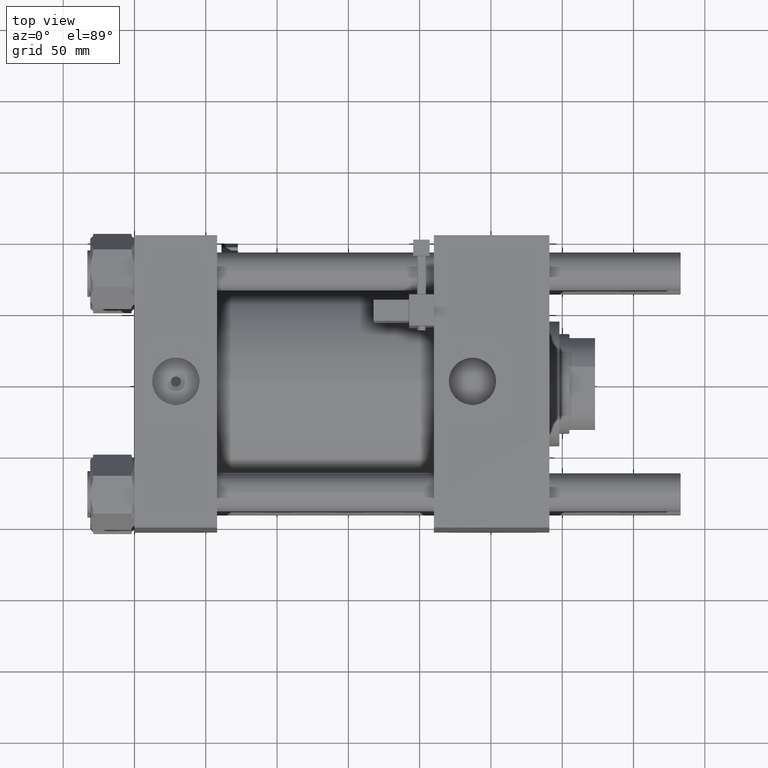
[diagram: clean part render]
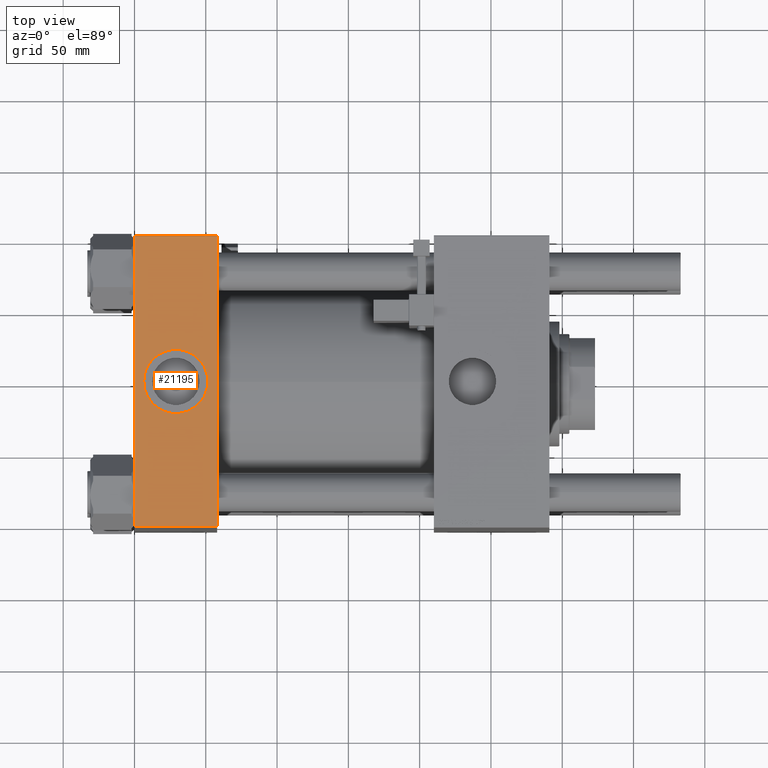
[diagram: same view with one face highlighted and labeled with its STEP entity id]
A machine part, top view. The second image highlights one B-rep face of the part: STEP entity #21195.
In plain terms, the highlighted planar face has unit normal (0, 0, -1).
Its self-contained STEP definition (entity closure, byte-faithful):
#269 = CARTESIAN_POINT ( 'NONE',  ( 58.00000000000000000, -101.9999999999999716, 102.5000000000000000 ) ) ;
#1111 = VECTOR ( 'NONE', #51552, 1000.000000000000000 ) ;
#2645 = DIRECTION ( 'NONE',  ( 1.000000000000000000, 0.000000000000000000, 0.000000000000000000 ) ) ;
#2756 = PLANE ( 'NONE',  #30993 ) ;
#2929 = CARTESIAN_POINT ( 'NONE',  ( 0.000000000000000000, -101.9999999999999147, 102.5000000000000000 ) ) ;
#4558 = CARTESIAN_POINT ( 'NONE',  ( 0.000000000000000000, 102.5000000000000284, 102.5000000000000284 ) ) ;
#4716 = VECTOR ( 'NONE', #13571, 1000.000000000000000 ) ;
#7160 = CARTESIAN_POINT ( 'NONE',  ( 29.00000000000000000, -8.673617379884038628E-15, 102.5000000000000142 ) ) ;
#7269 = FACE_BOUND ( 'NONE', #59557, .T. ) ;
#7463 = CARTESIAN_POINT ( 'NONE',  ( 58.00000000000000000, -101.9999999999999147, 102.5000000000000000 ) ) ;
#7910 = ORIENTED_EDGE ( 'NONE', *, *, #19500, .T. ) ;
#8061 = VERTEX_POINT ( 'NONE', #50924 ) ;
#9252 = EDGE_CURVE ( 'NONE', #8061, #31532, #13380, .T. ) ;
#10041 = ORIENTED_EDGE ( 'NONE', *, *, #9252, .F. ) ;
#10312 = CIRCLE ( 'NONE', #38241, 22.50000000000000355 ) ;
#10409 = ORIENTED_EDGE ( 'NONE', *, *, #47215, .F. ) ;
#11062 = CARTESIAN_POINT ( 'NONE',  ( 51.50000000000000711, -8.673617379884038628E-15, 102.5000000000000142 ) ) ;
#12909 = CARTESIAN_POINT ( 'NONE',  ( 58.00000000000000000, 102.5000000000000284, 102.5000000000000284 ) ) ;
#13273 = LINE ( 'NONE', #44927, #4716 ) ;
#13313 = EDGE_LOOP ( 'NONE', ( #7910, #41637, #21839, #20290 ) ) ;
#13373 = VERTEX_POINT ( 'NONE', #7463 ) ;
#13380 = CIRCLE ( 'NONE', #48058, 22.50000000000000355 ) ;
#13571 = DIRECTION ( 'NONE',  ( -1.000000000000000000, 0.000000000000000000, 0.000000000000000000 ) ) ;
#16478 = DIRECTION ( 'NONE',  ( 0.000000000000000000, 0.000000000000000000, 1.000000000000000000 ) ) ;
#16623 = CARTESIAN_POINT ( 'NONE',  ( 58.00000000000000000, 102.5000000000000284, 102.5000000000000284 ) ) ;
#19500 = EDGE_CURVE ( 'NONE', #42835, #43557, #55471, .T. ) ;
#20290 = ORIENTED_EDGE ( 'NONE', *, *, #51821, .T. ) ;
#21195 = ADVANCED_FACE ( 'NONE', ( #7269, #43171 ), #2756, .F. ) ;
#21352 = LINE ( 'NONE', #12909, #56657 ) ;
#21839 = ORIENTED_EDGE ( 'NONE', *, *, #49608, .F. ) ;
#22901 = CARTESIAN_POINT ( 'NONE',  ( 58.00000000000000000, 102.0000000000000142, 102.5000000000000284 ) ) ;
#25533 = DIRECTION ( 'NONE',  ( 0.000000000000000000, 0.000000000000000000, 1.000000000000000000 ) ) ;
#26163 = DIRECTION ( 'NONE',  ( 0.000000000000000000, -1.000000000000000000, -1.353930517835556973E-16 ) ) ;
#30993 = AXIS2_PLACEMENT_3D ( 'NONE', #16623, #34983, #48272 ) ;
#31532 = VERTEX_POINT ( 'NONE', #11062 ) ;
#34983 = DIRECTION ( 'NONE',  ( 0.000000000000000000, 1.353930517835556973E-16, -1.000000000000000000 ) ) ;
#35343 = VECTOR ( 'NONE', #54530, 1000.000000000000000 ) ;
#35938 = VERTEX_POINT ( 'NONE', #22901 ) ;
#38241 = AXIS2_PLACEMENT_3D ( 'NONE', #7160, #25533, #2645 ) ;
#40262 = CARTESIAN_POINT ( 'NONE',  ( 29.00000000000000000, -8.673617379884038628E-15, 102.5000000000000142 ) ) ;
#41637 = ORIENTED_EDGE ( 'NONE', *, *, #46820, .T. ) ;
#42835 = VERTEX_POINT ( 'NONE', #56739 ) ;
#43171 = FACE_OUTER_BOUND ( 'NONE', #13313, .T. ) ;
#43557 = VERTEX_POINT ( 'NONE', #2929 ) ;
#44927 = CARTESIAN_POINT ( 'NONE',  ( 0.000000000000000000, 102.0000000000000142, 102.5000000000000284 ) ) ;
#46387 = LINE ( 'NONE', #269, #35343 ) ;
#46820 = EDGE_CURVE ( 'NONE', #43557, #13373, #46387, .T. ) ;
#47215 = EDGE_CURVE ( 'NONE', #31532, #8061, #10312, .T. ) ;
#48058 = AXIS2_PLACEMENT_3D ( 'NONE', #40262, #16478, #58048 ) ;
#48272 = DIRECTION ( 'NONE',  ( 0.000000000000000000, 1.000000000000000000, 1.353930517835556973E-16 ) ) ;
#49608 = EDGE_CURVE ( 'NONE', #35938, #13373, #21352, .T. ) ;
#50924 = CARTESIAN_POINT ( 'NONE',  ( 6.499999999999995559, -5.918162081802493061E-15, 102.5000000000000142 ) ) ;
#51552 = DIRECTION ( 'NONE',  ( 0.000000000000000000, -1.000000000000000000, -1.353930517835556973E-16 ) ) ;
#51821 = EDGE_CURVE ( 'NONE', #35938, #42835, #13273, .T. ) ;
#54530 = DIRECTION ( 'NONE',  ( 1.000000000000000000, 0.000000000000000000, 0.000000000000000000 ) ) ;
#55471 = LINE ( 'NONE', #4558, #1111 ) ;
#56657 = VECTOR ( 'NONE', #26163, 1000.000000000000000 ) ;
#56739 = CARTESIAN_POINT ( 'NONE',  ( 0.000000000000000000, 102.0000000000000142, 102.5000000000000284 ) ) ;
#58048 = DIRECTION ( 'NONE',  ( 1.000000000000000000, 0.000000000000000000, 0.000000000000000000 ) ) ;
#59557 = EDGE_LOOP ( 'NONE', ( #10409, #10041 ) ) ;